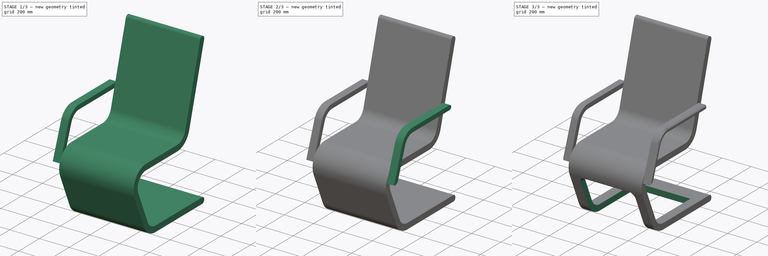
[diagram: build sequence overview — one tinted view per stage of 3, left to right]
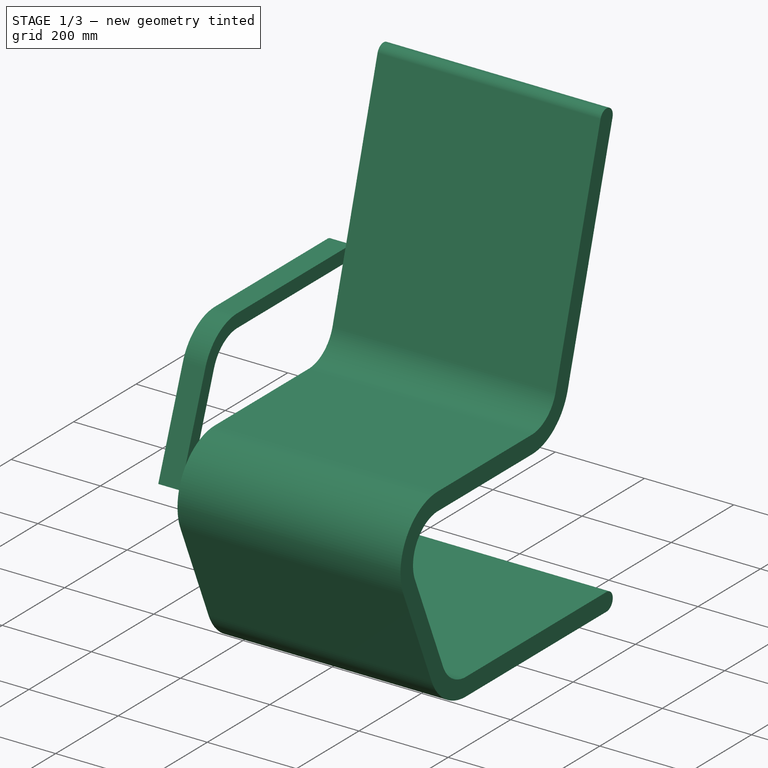
[diagram: stage 1 of 3 — iso view after this stage's code; geometry added in this stage tinted green]
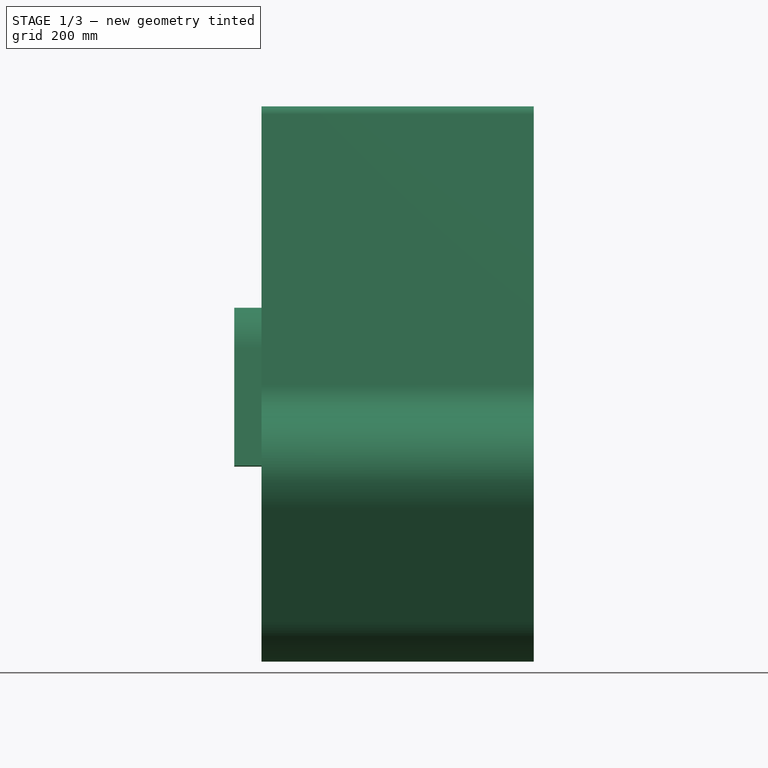
[diagram: stage 1 of 3 — front view after this stage's code; geometry added in this stage tinted green]
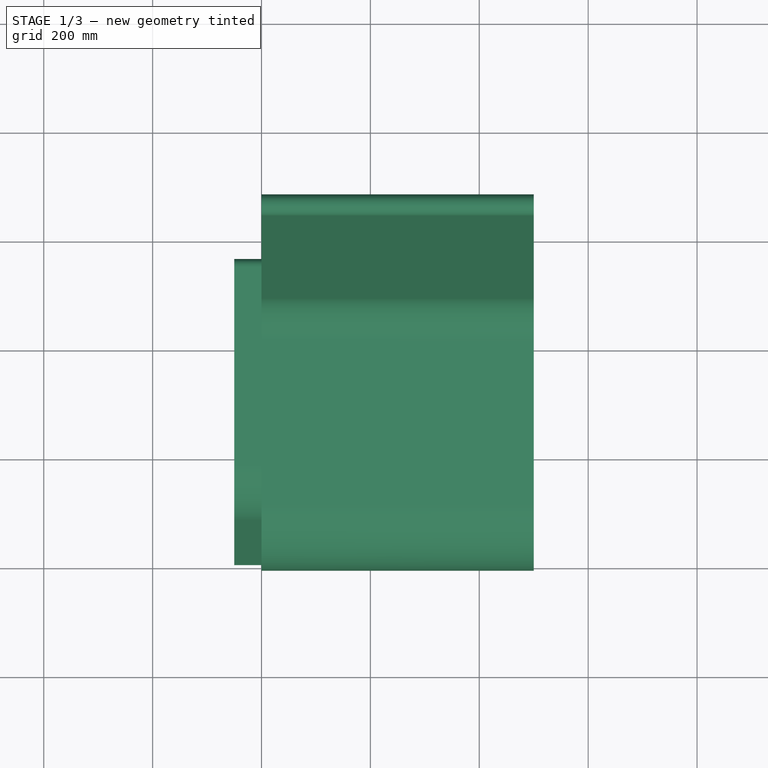
[diagram: stage 1 of 3 — top view after this stage's code; geometry added in this stage tinted green]
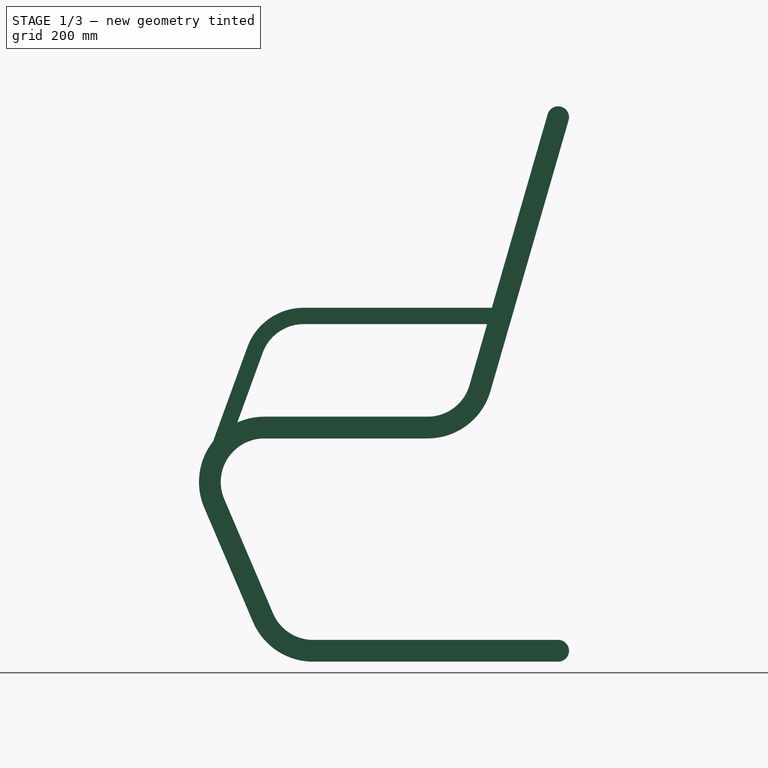
[diagram: stage 1 of 3 — right view after this stage's code; geometry added in this stage tinted green]
FCSTD DOCUMENT  (FreeCAD 0.20R29177 +426 (Git))
Label: ModernChair
License: All rights reserved
objects: Sketcher::SketchObject×3, PartDesign::Pad×2, PartDesign::LinearPattern×1, PartDesign::Chamfer×1, PartDesign::Pocket×1, PartDesign::Body×1
note: 13 computed .brp shape members not serialized (recipe doc carries the construction recipe); baked Part::Feature solids carry a one-line shape summary decoded from their .brp

FEATURE [Sketcher::SketchObject] Sketch008
  FullyConstrained = true
  MapMode = 5
  Placement = pos=(0,0,0) rot=(0.57735,0.57735,0.57735;2.0944rad)
  Support = -> [YZ_Plane009]
  sketch-geometry (16):
    g0: LineSegment StartX=630.783 StartY=1005.54 StartZ=0 EndX=487.234 EndY=507.83 EndZ=0
    g1: ArcOfCircle CenterX=410.367 CenterY=530 CenterZ=0 NormalX=0 NormalY=0 NormalZ=1 AngleXU=0 Radius=80 StartAngle=4.71239 EndAngle=6.00239
    g2: LineSegment StartX=410.367 StartY=450 StartZ=0 EndX=110.367 EndY=450 EndZ=0
    g3: ArcOfCircle CenterX=110.367 CenterY=330 CenterZ=0 NormalX=0 NormalY=0 NormalZ=1 AngleXU=0 Radius=120 StartAngle=1.5708 EndAngle=3.54501
    g4: LineSegment StartX=1.42e-14 StartY=282.893 StartZ=0 EndX=89.6329 EndY=72.8928 EndZ=0
    g5: ArcOfCircle CenterX=200 CenterY=120 CenterZ=0 NormalX=0 NormalY=0 NormalZ=1 AngleXU=0 Radius=120 StartAngle=3.54501 EndAngle=4.71239
    g6: LineSegment StartX=200 StartY=0 StartZ=0 EndX=650 EndY=0 EndZ=0
    g7: LineSegment StartX=669.217 StartY=994.458 StartZ=0 EndX=525.667 EndY=496.745 EndZ=0
    g8: ArcOfCircle CenterX=410.367 CenterY=530 CenterZ=0 NormalX=0 NormalY=0 NormalZ=1 AngleXU=0 Radius=120 StartAngle=4.71239 EndAngle=6.00239
    g9: LineSegment StartX=410.367 StartY=410 StartZ=0 EndX=110.367 EndY=410 EndZ=0
    g10: ArcOfCircle CenterX=110.367 CenterY=330 CenterZ=0 NormalX=0 NormalY=0 NormalZ=1 AngleXU=0 Radius=80 StartAngle=1.5708 EndAngle=3.54501
    g11: LineSegment StartX=36.789 StartY=298.595 StartZ=0 EndX=126.422 EndY=88.5952 EndZ=0
    g12: ArcOfCircle CenterX=200 CenterY=120 CenterZ=0 NormalX=0 NormalY=0 NormalZ=1 AngleXU=0 Radius=80 StartAngle=3.54501 EndAngle=4.71239
    g13: LineSegment StartX=200 StartY=40 StartZ=0 EndX=650 EndY=40 EndZ=0
    g14: ArcOfCircle CenterX=650 CenterY=20 CenterZ=0 NormalX=0 NormalY=0 NormalZ=1 AngleXU=0 Radius=20 StartAngle=4.71239 EndAngle=7.85398
    g15: ArcOfCircle CenterX=650 CenterY=1000 CenterZ=0 NormalX=0 NormalY=0 NormalZ=1 AngleXU=0 Radius=20 StartAngle=6.00239 EndAngle=9.14398
  constraints (37):
    c: Tangent(g0,g1) = 1.5708
    c: Tangent(g2,g3) = -1.5708
    c: Tangent(g4,g5) = -1.5708
    c: Tangent(g5,g6) = -1.5708
    c: PointOnObject(g5,g-1)
    c: Tangent(g3,g4) = -1.5708
    c: Horizontal(g2)
    c: PointOnObject(g6,g-1)
    c: Tangent(g1,g2) = 1.5708
    c: DistanceX(g2,g1) = 300
    c: DistanceY(g2) = 450
    c: Tangent(g7,g8) = 1.5708
    c: Tangent(g9,g10) = -1.5708
    c: Tangent(g11,g12) = -1.5708
    c: Tangent(g12,g13) = -1.5708
    c: Tangent(g10,g11) = -1.5708
    c: Horizontal(g9)
    c: Tangent(g8,g9) = 1.5708
    c: Vertical(g13,g6)
    c: Coincident(g8,g1)
    c: Parallel(g7,g0)
    c: Parallel(g11,g4)
    c: Coincident(g10,g3)
    c: Coincident(g5,g12)
    c: DistanceY(g6,g13) = 40
    c: Tangent(g14,g13) = 1.5708
    c: Tangent(g14,g6) = -1.5708
    c: Tangent(g15,g0) = -1.5708
    c: Tangent(g15,g7) = 1.5708
    c: Radius(g3) = 120
    c: Radius(g8) = 120
    c: Radius(g5) = 120
    c: PointOnObject(g3,g-2)
    c: DistanceX(g5) = 200
    c: DistanceY(g15) = 1000
    c: DistanceX(g15) = 650
    c: DistanceX(g14) = 650
FEATURE [PartDesign::Pad] Pad007
  Direction = (1,-2e-16,3e-16)
  Length = 500
  Length2 = 10
  Placement = pos=(0,0,0) rot=(0.57735,0.57735,0.57735;2.0944rad)
  Profile = -> Sketch008
  ReferenceAxis = -> Sketch008 [N_Axis]
  Type = 0
FEATURE [Sketcher::SketchObject] Sketch
  FullyConstrained = true
  MapMode = 5
  Placement = pos=(0,0,0) rot=(0.57735,0.57735,0.57735;2.0944rad)
  Support = -> [YZ_Plane009]
  sketch-geometry (8):
    g0: LineSegment StartX=542.574 StartY=650 StartZ=0 EndX=182.574 EndY=650 EndZ=0
    g1: ArcOfCircle CenterX=182.574 CenterY=540 CenterZ=0 NormalX=0 NormalY=0 NormalZ=1 AngleXU=0 Radius=110 StartAngle=1.5708 EndAngle=2.79253
    g2: LineSegment StartX=79.208 StartY=577.622 StartZ=0 EndX=0 EndY=360 EndZ=0
    g3: LineSegment StartX=542.574 StartY=620 StartZ=0 EndX=182.574 EndY=620 EndZ=0
    g4: ArcOfCircle CenterX=182.574 CenterY=540 CenterZ=0 NormalX=0 NormalY=0 NormalZ=1 AngleXU=0 Radius=80 StartAngle=1.5708 EndAngle=2.79253
    g5: LineSegment StartX=107.399 StartY=567.362 StartZ=0 EndX=38.4514 EndY=377.93 EndZ=0
    g6: ArcOfCircle CenterX=542.574 CenterY=635 CenterZ=0 NormalX=0 NormalY=0 NormalZ=1 AngleXU=0 Radius=15 StartAngle=4.71239 EndAngle=7.85398
    g7: ArcOfCircle CenterX=10.2606 CenterY=388.191 CenterZ=0 NormalX=0 NormalY=0 NormalZ=1 AngleXU=0 Radius=30 StartAngle=4.36332 EndAngle=5.93412
  constraints (20):
    c: Horizontal(g0)
    c: Tangent(g0,g1) = -1.5708
    c: Tangent(g1,g2) = -1.5708
    c: Horizontal(g3)
    c: Tangent(g3,g4) = -1.5708
    c: Tangent(g4,g5) = -1.5708
    c: Parallel(g2,g5)
    c: Coincident(g4,g1)
    c: DistanceY(g3,g0) = 30
    c: DistanceX(g0,g0) = 360
    c: Tangent(g6,g0) = -1.5708
    c: Tangent(g6,g3) = 1.5708
    c: PointOnObject(g2,g-2)
    c: Angle(g2,g0) = 1.91986
    c: Coincident(g7,g2)
    c: Perpendicular(g7,g2)
    c: Tangent(g7,g5) = 1.5708
    c: DistanceY(g0) = 650
    c: DistanceY(g2) = 360
    c: Radius(g1) = 110
FEATURE [PartDesign::Pad] Pad
  BaseFeature = -> Pad007
  Direction = (1,-2e-16,3e-16)
  Length = 50
  Length2 = 10
  Placement = pos=(0,0,0) rot=(0.57735,0.57735,0.57735;2.0944rad)
  Profile = -> Sketch
  ReferenceAxis = -> Sketch [N_Axis]
  Reversed = true
  Type = 0
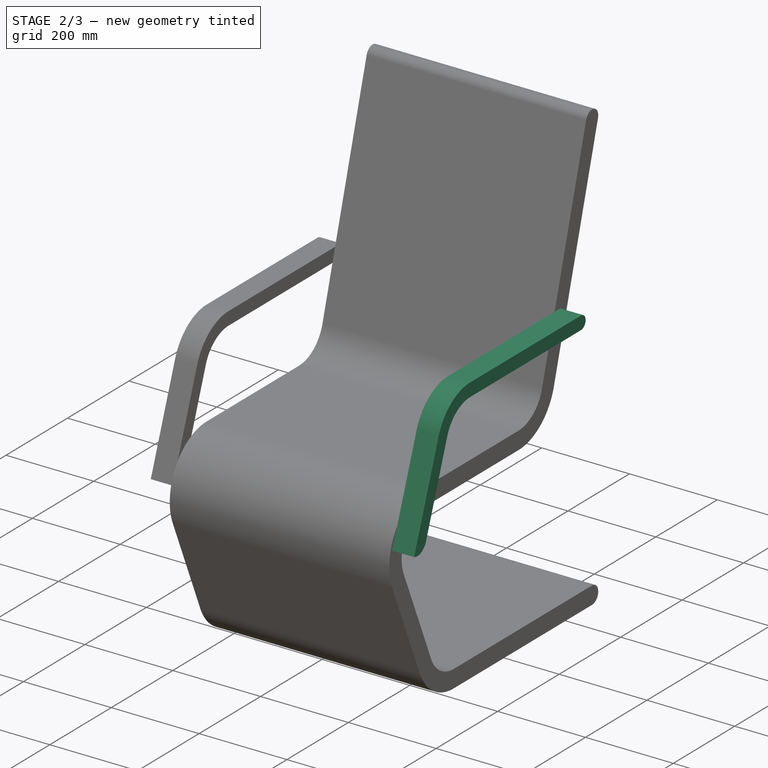
[diagram: stage 2 of 3 — iso view after this stage's code; geometry added in this stage tinted green]
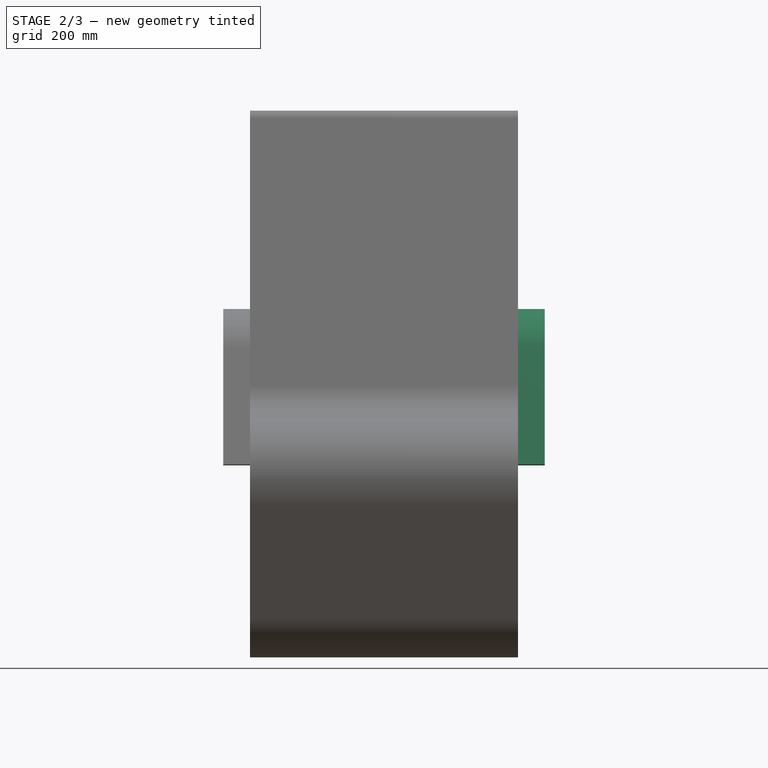
[diagram: stage 2 of 3 — front view after this stage's code; geometry added in this stage tinted green]
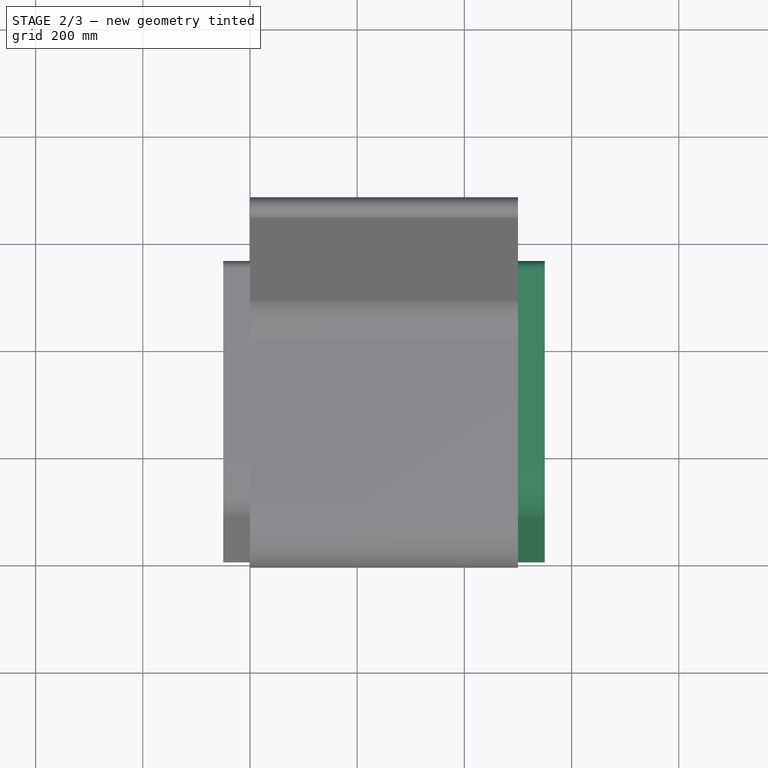
[diagram: stage 2 of 3 — top view after this stage's code; geometry added in this stage tinted green]
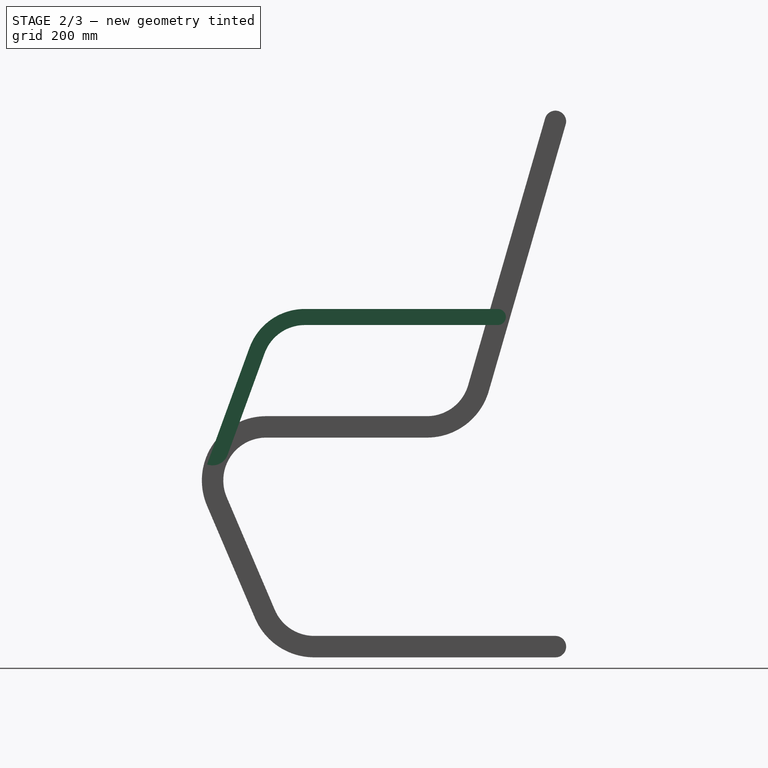
[diagram: stage 2 of 3 — right view after this stage's code; geometry added in this stage tinted green]
FEATURE [PartDesign::LinearPattern] LinearPattern
  BaseFeature = -> Pad
  Direction = -> X_Axis009
  Length = 550
  Occurrences = 2
  Originals = -> [Pad]
  Placement = pos=(0,0,0) rot=(0.57735,0.57735,0.57735;2.0944rad)
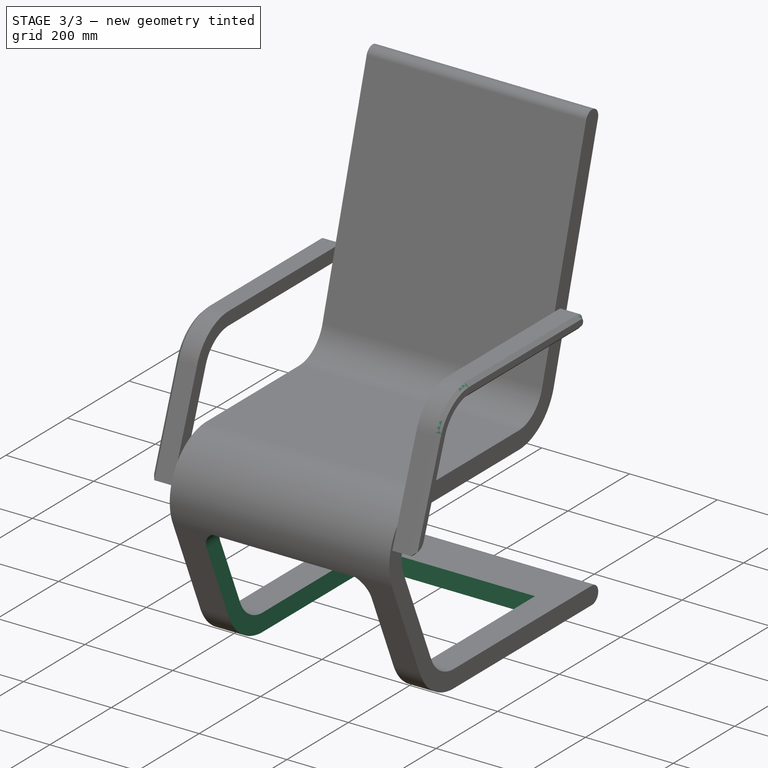
[diagram: stage 3 of 3 — iso view after this stage's code; geometry added in this stage tinted green]
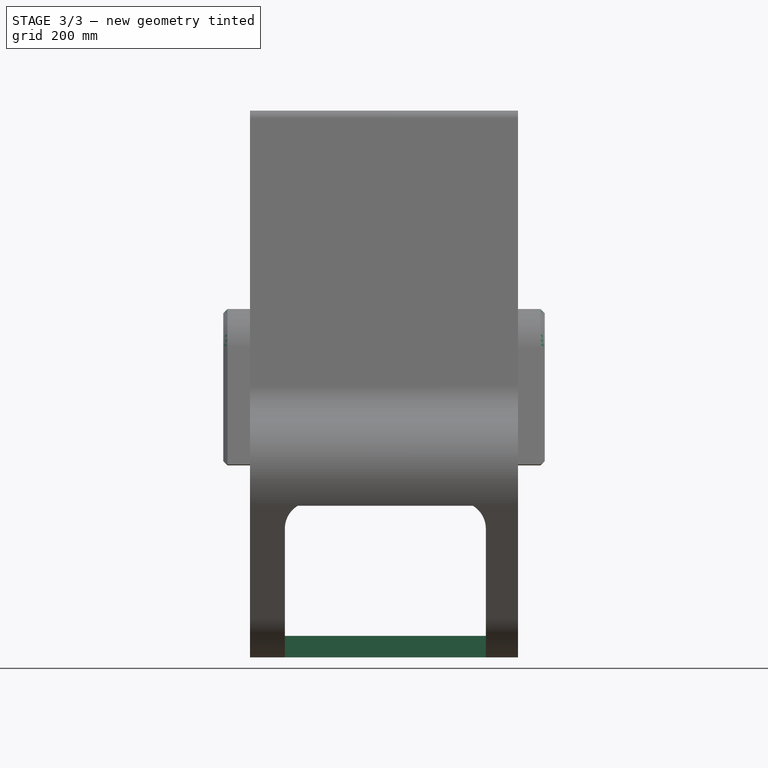
[diagram: stage 3 of 3 — front view after this stage's code; geometry added in this stage tinted green]
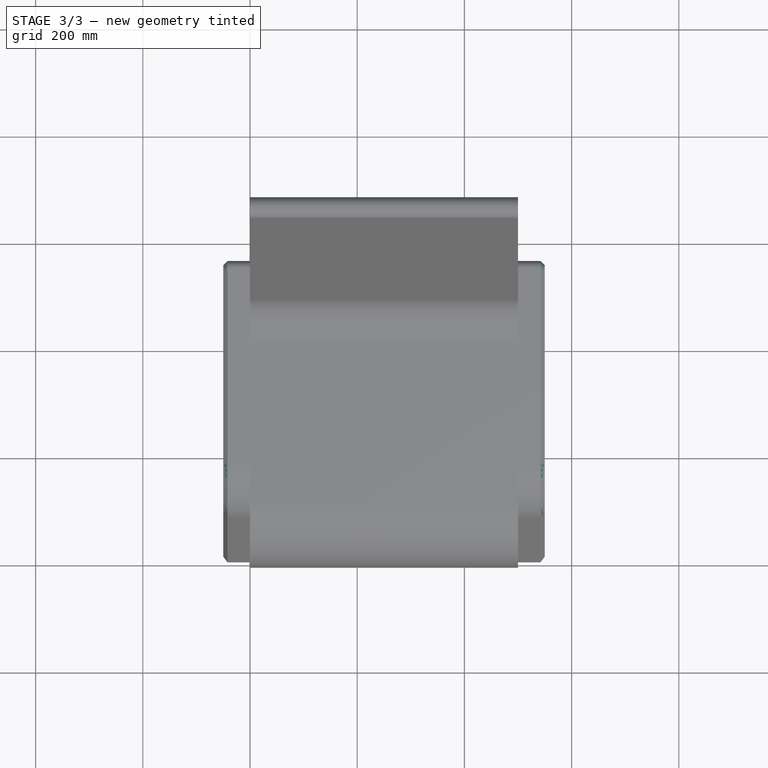
[diagram: stage 3 of 3 — top view after this stage's code; geometry added in this stage tinted green]
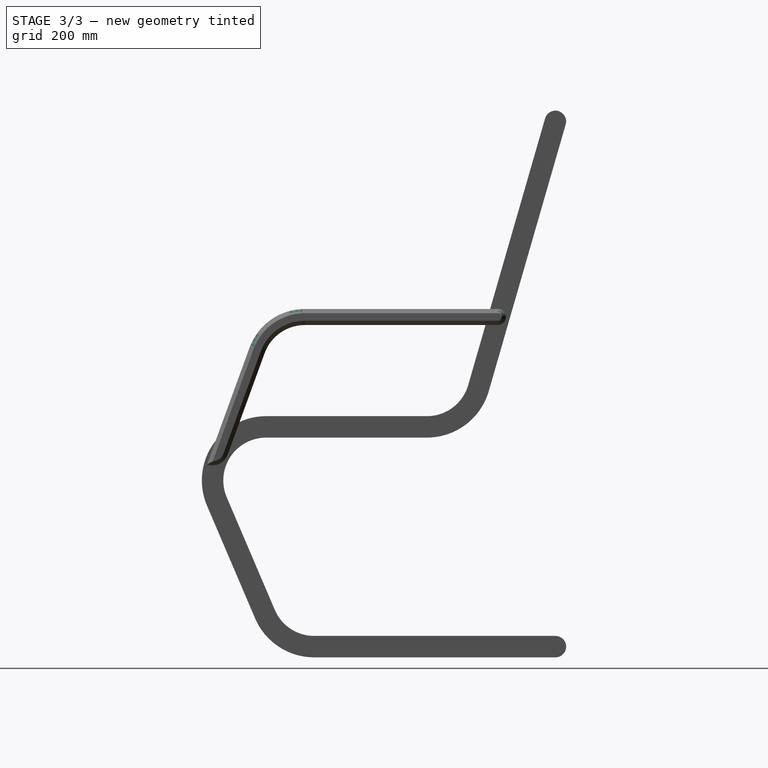
[diagram: stage 3 of 3 — right view after this stage's code; geometry added in this stage tinted green]
FEATURE [PartDesign::Chamfer] Chamfer
  Angle = 45
  Base = -> LinearPattern [Face38,Face37]
  BaseFeature = -> LinearPattern
  ChamferType = 0
  FlipDirection = false
  Placement = pos=(0,0,0) rot=(0.57735,0.57735,0.57735;2.0944rad)
  Size = 8
  Size2 = 1
  SupportTransform = false
  UseAllEdges = false
FEATURE [Sketcher::SketchObject] Sketch009
  FullyConstrained = true
  MapMode = 5
  Placement = pos=(0,0,0) rot=(1,0,0;1.5708rad)
  Support = -> [XZ_Plane009]
  sketch-geometry (6):
    g0: LineSegment StartX=65 StartY=0 StartZ=0 EndX=440 EndY=0 EndZ=0
    g1: LineSegment StartX=440 StartY=0 StartZ=0 EndX=440 EndY=240 EndZ=0
    g2: LineSegment StartX=390 StartY=290 StartZ=0 EndX=115 EndY=290 EndZ=0
    g3: LineSegment StartX=65 StartY=240 StartZ=0 EndX=65 EndY=0 EndZ=0
    g4: ArcOfCircle CenterX=115 CenterY=240 CenterZ=0 NormalX=0 NormalY=0 NormalZ=1 AngleXU=0 Radius=50 StartAngle=1.5708 EndAngle=3.14159
    g5: ArcOfCircle CenterX=390 CenterY=240 CenterZ=0 NormalX=0 NormalY=0 NormalZ=1 AngleXU=0 Radius=50 StartAngle=-9e-16 EndAngle=1.5708
  constraints (16):
    c: Coincident(g0,g1)
    c: Coincident(g3,g0)
    c: Horizontal(g0)
    c: Horizontal(g2)
    c: Vertical(g1)
    c: Vertical(g3)
    c: PointOnObject(g0,g-1)
    c: DistanceX(g0,g0) = 375
    c: DistanceX(g0) = 65
    c: Tangent(g1,g5) = -1.5708
    c: DistanceY(g2) = 290
    c: Radius(g5) = 50
    c: Tangent(g5,g2) = -1.5708
    c: Tangent(g2,g4) = -1.5708
    c: Tangent(g3,g4) = -1.5708
    c: Equal(g5,g4)
FEATURE [PartDesign::Pocket] Pocket
  BaseFeature = -> Chamfer
  Direction = (0,1,2e-16)
  Length = 550
  Length2 = 5
  Placement = pos=(0,0,0) rot=(0.57735,0.57735,0.57735;2.0944rad)
  Profile = -> Sketch009
  ReferenceAxis = -> Sketch009 [N_Axis]
  Type = 0
FEATURE [PartDesign::Body] Body009  label="Chair"
  Group = -> [Sketch008,Pad007,Sketch,Pad,LinearPattern,Chamfer,Sketch009,Pocket]
  Origin = -> Origin009
  Tip = -> Pocket
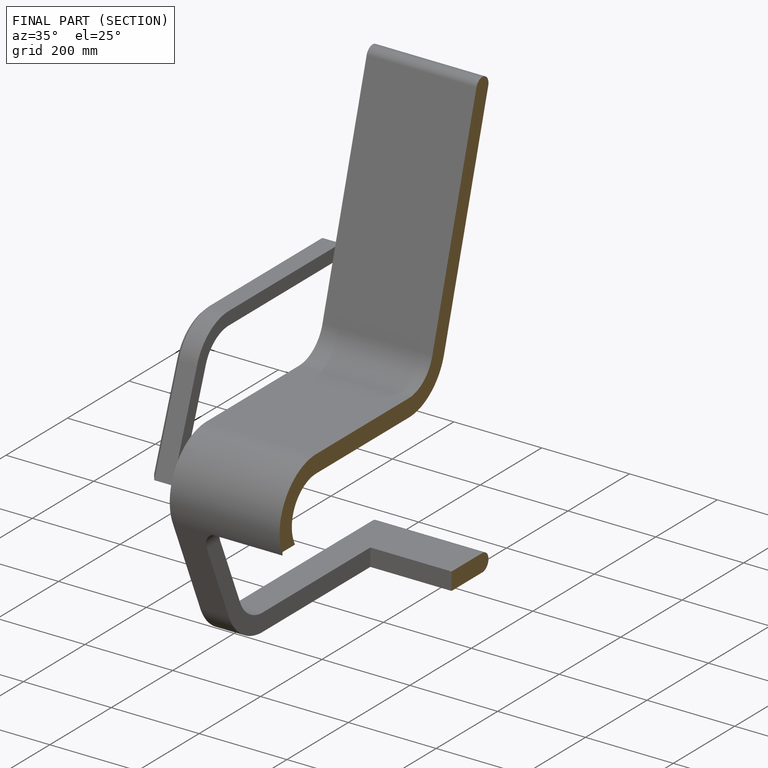
[diagram: finished part — half-section view (interior)]
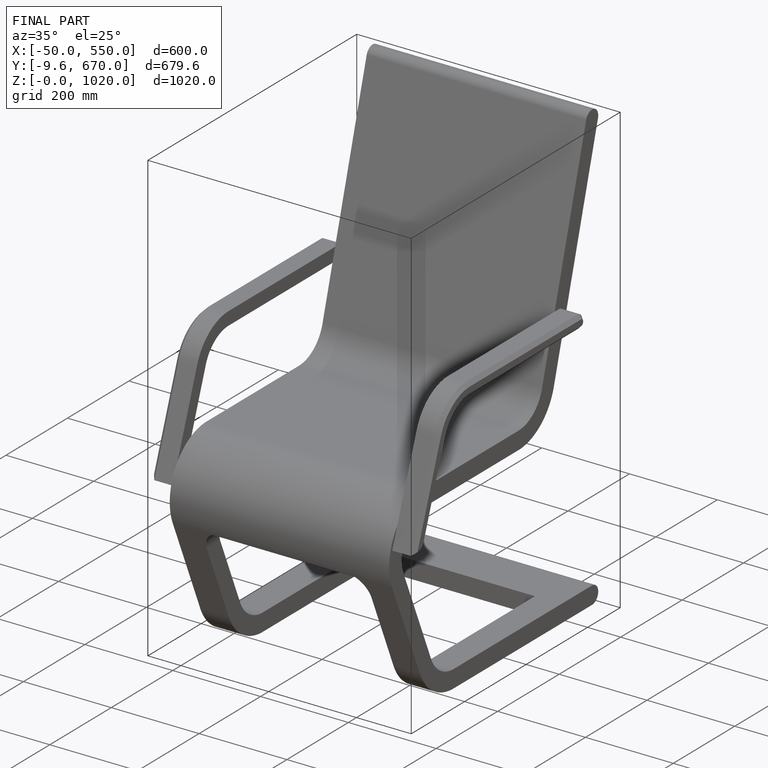
[diagram: finished part — iso view with bounding-box wireframe]
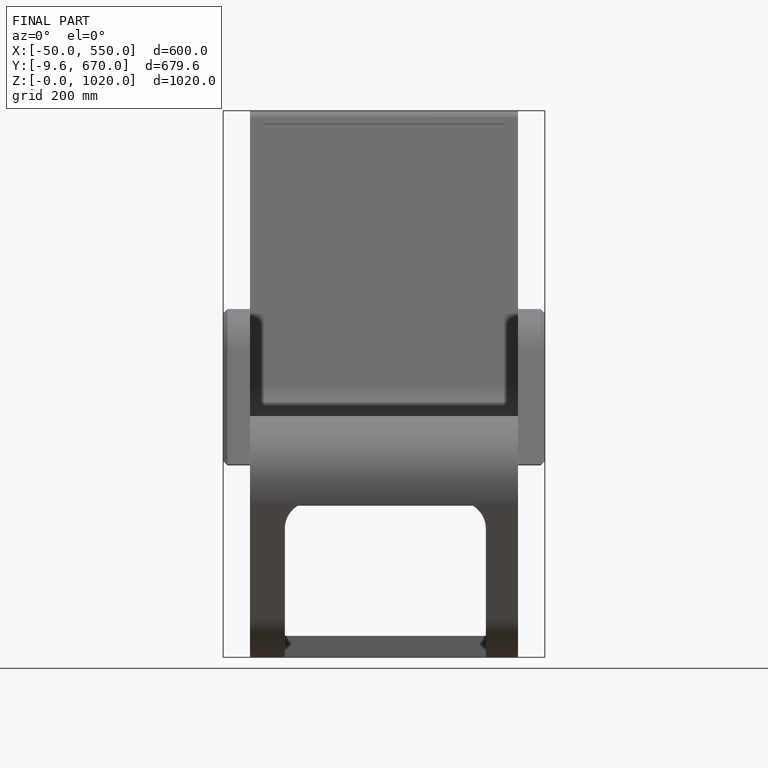
[diagram: finished part — front view with bounding-box wireframe]
